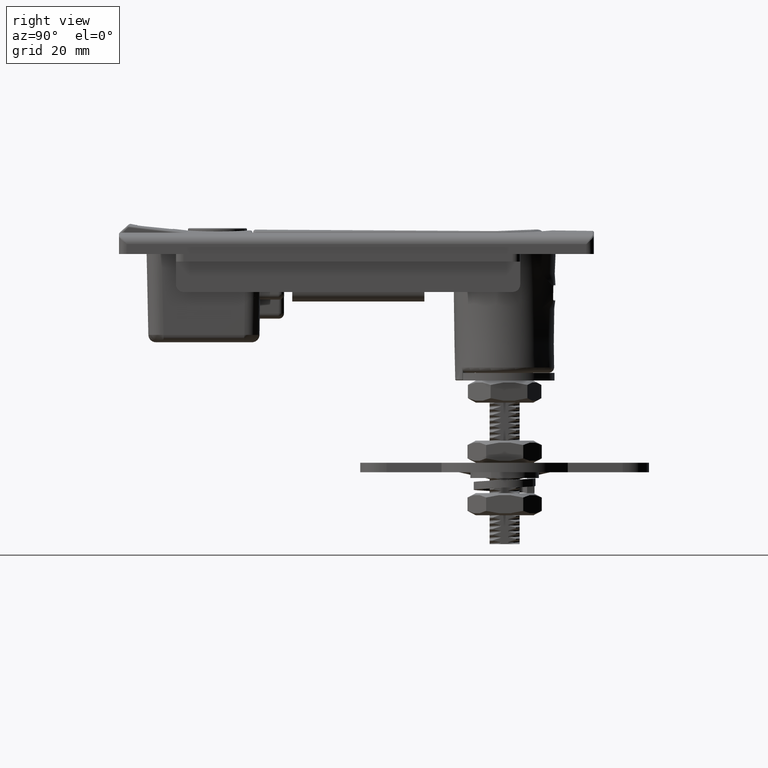
[diagram: clean part render]
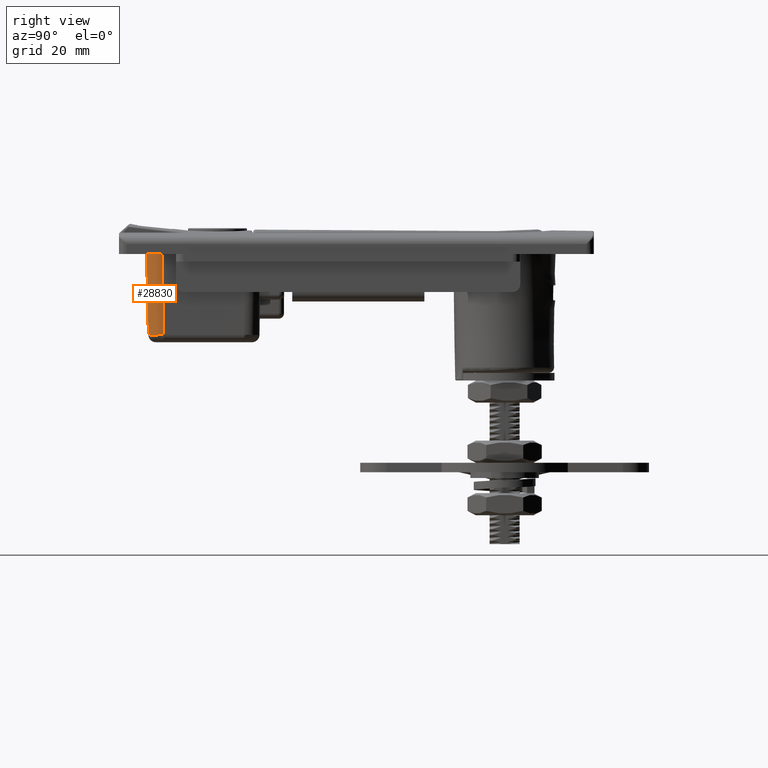
[diagram: same view with one face highlighted and labeled with its STEP entity id]
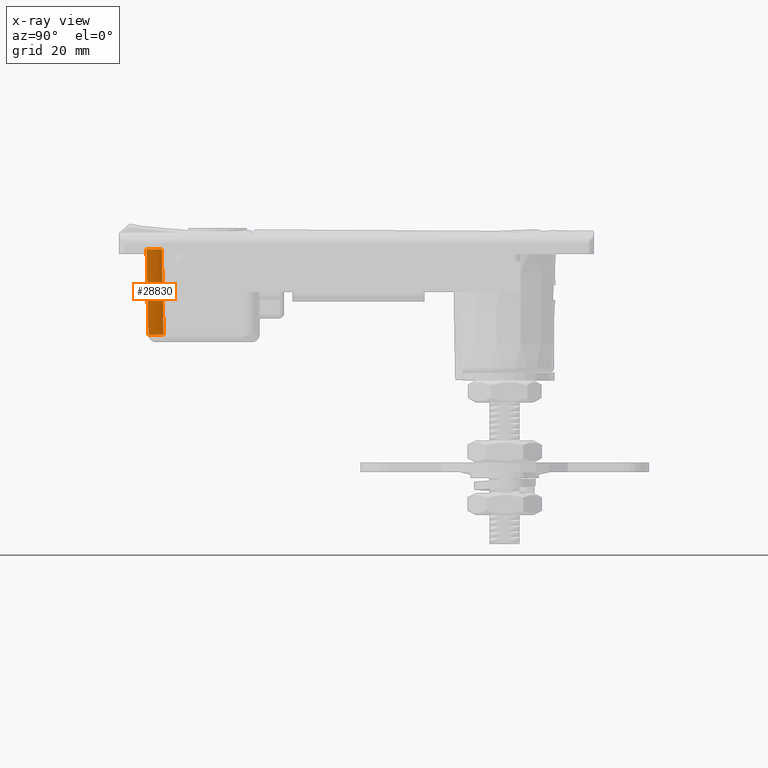
[diagram: x-ray of the same camera — body ghosted, the highlighted face saturated]
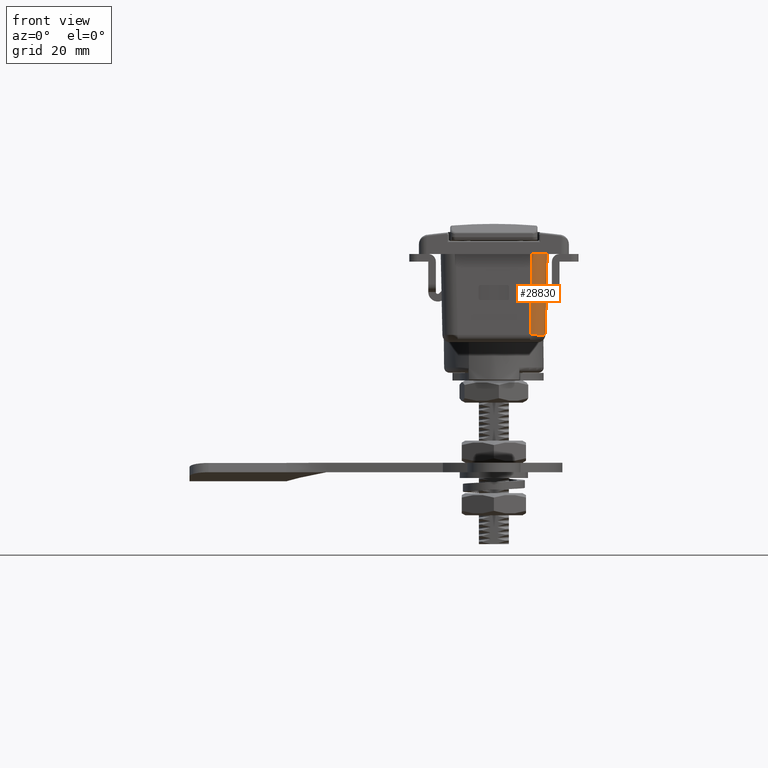
[diagram: same view with one face highlighted and labeled with its STEP entity id]
A machine part, right view. The second image highlights one B-rep face of the part: STEP entity #28830.
The next image is the same camera in x-ray: the body ghosted, the highlighted face saturated — about 0% of this face is hidden behind the body in this view.
A second angle (front view) of the same face is appended — the face is thin or edge-on in the first view.
In plain terms, the highlighted cylindrical surface (edge-blend (fillet) strip) has radius 4 mm, axis along (-0.0209, 0.0209, -0.9996).
Its self-contained STEP definition (entity closure, byte-faithful):
#465=CYLINDRICAL_SURFACE('',#30781,4.);
#1185=ELLIPSE('',#30782,4.00175472468459,4.);
#2526=LINE('',#42186,#4298);
#2574=LINE('',#43031,#4346);
#4298=VECTOR('',#33435,22.451729672091);
#4346=VECTOR('',#33695,22.451729672091);
#6503=FACE_OUTER_BOUND('',#8276,.T.);
#8276=EDGE_LOOP('',(#20215,#20216,#20217,#20218));
#9955=B_SPLINE_CURVE_WITH_KNOTS('',3,(#42716,#42717,#42718,#42719,#42720,
#42721,#42722,#42723,#42724,#42725,#42726,#42727,#42728,#42729,#42730,#42731,
#42732,#42733,#42734,#42735,#42736,#42737,#42738,#42739,#42740,#42741,#42742,
#42743,#42744,#42745,#42746,#42747,#42748,#42749,#42750,#42751,#42752,#42753,
#42754,#42755,#42756,#42757),.UNSPECIFIED.,.F.,.F.,(4,2,2,2,2,2,2,2,2,2,
2,2,2,2,2,2,2,2,2,2,4),(1.60657483519132E-15,0.072434479232657,0.0971134745901052,
0.156789152741119,0.200037921799459,0.256998059362436,0.304781860480683,
0.364326395926819,0.407943358541259,0.479360187518886,0.5,0.570296956150538,
0.601890511120556,0.660886361654141,0.706787453503396,0.76377845048373,
0.81040969859322,0.870575179356096,0.909016458677453,0.982268167394136,
1.),.UNSPECIFIED.);
#11951=VERTEX_POINT('',#42182);
#11952=VERTEX_POINT('',#42184);
#11994=VERTEX_POINT('',#42714);
#12006=VERTEX_POINT('',#43030);
#15037=EDGE_CURVE('',#11952,#11951,#2526,.T.);
#15114=EDGE_CURVE('',#11952,#11994,#9955,.T.);
#15148=EDGE_CURVE('',#12006,#11994,#2574,.T.);
#15149=EDGE_CURVE('',#11951,#12006,#1185,.T.);
#20215=ORIENTED_EDGE('',*,*,#15037,.F.);
#20216=ORIENTED_EDGE('',*,*,#15114,.T.);
#20217=ORIENTED_EDGE('',*,*,#15148,.F.);
#20218=ORIENTED_EDGE('',*,*,#15149,.F.);
#28830=ADVANCED_FACE('',(#6503),#465,.T.);
#30781=AXIS2_PLACEMENT_3D('',#43029,#33693,#33694);
#30782=AXIS2_PLACEMENT_3D('',#43032,#33696,#33697);
#33435=DIRECTION('',(0.0209378288783694,-0.0209378288783589,-0.99956151118564));
#33693=DIRECTION('center_axis',(-0.0209378288783694,0.0209378288783589,
0.99956151118564));
#33694=DIRECTION('ref_axis',(-0.999780683474845,4.8246996675605E-18,-0.02094241988336));
#33695=DIRECTION('',(-0.0209378288783694,0.0209378288783589,0.99956151118564));
#33696=DIRECTION('center_axis',(0.,0.,-1.));
#33697=DIRECTION('ref_axis',(-0.707106781186725,0.70710678118637,0.));
#42182=CARTESIAN_POINT('',(94.1,-10.0008772661006,-32.4));
#42184=CARTESIAN_POINT('',(93.6299095261024,-9.53078679220315,-9.95811516023325));
#42186=CARTESIAN_POINT('',(93.8297787486625,-9.73065601476313,-19.4997721917343));
#42714=CARTESIAN_POINT('',(89.630786792203,-13.5299095261025,-9.95811516023327));
#42716=CARTESIAN_POINT('Ctrl Pts',(93.6299095261024,-9.53078679220315,-9.95811516023326));
#42717=CARTESIAN_POINT('Ctrl Pts',(93.6298762746062,-9.68245085616616,-9.95652775038342));
#42718=CARTESIAN_POINT('Ctrl Pts',(93.6212125046686,-9.8339976599742,-9.95500895263238));
#42719=CARTESIAN_POINT('Ctrl Pts',(93.5981134540798,-10.0358852656416,-9.95308621505495));
#42720=CARTESIAN_POINT('Ctrl Pts',(93.5912495746504,-10.087078182222,-9.95260741766361));
#42721=CARTESIAN_POINT('Ctrl Pts',(93.564404862029,-10.261563199547,-9.95100647692791));
#42722=CARTESIAN_POINT('Ctrl Pts',(93.5396226225147,-10.3841474764196,-9.94993500593344));
#42723=CARTESIAN_POINT('Ctrl Pts',(93.4870623194158,-10.5931676960332,-9.94820816659285));
#42724=CARTESIAN_POINT('Ctrl Pts',(93.4619878321489,-10.6802656570687,-9.94751942192091));
#42725=CARTESIAN_POINT('Ctrl Pts',(93.3970906384943,-10.8799088685003,-9.94601610243015));
#42726=CARTESIAN_POINT('Ctrl Pts',(93.3551121491331,-10.9917612237811,-9.94523099622281));
#42727=CARTESIAN_POINT('Ctrl Pts',(93.2688779724641,-11.1935833249227,-9.94392638401017));
#42728=CARTESIAN_POINT('Ctrl Pts',(93.2260795529281,-11.2841755692703,-9.94338444339722));
#42729=CARTESIAN_POINT('Ctrl Pts',(93.1224696976432,-11.4837338896503,-9.94229325992929));
#42730=CARTESIAN_POINT('Ctrl Pts',(93.0598195919407,-11.5917280705977,-9.94177513302222));
#42731=CARTESIAN_POINT('Ctrl Pts',(92.9428136451014,-11.7733052074693,-9.94103559979029));
#42732=CARTESIAN_POINT('Ctrl Pts',(92.8907228047809,-11.8483662522937,-9.94077186526257));
#42733=CARTESIAN_POINT('Ctrl Pts',(92.7467615011584,-12.0413582567934,-9.94020818575732));
#42734=CARTESIAN_POINT('Ctrl Pts',(92.6506992775649,-12.1561172802553,-9.93999234497337));
#42735=CARTESIAN_POINT('Ctrl Pts',(92.5189334305993,-12.2967120729645,-9.93989037937263));
#42736=CARTESIAN_POINT('Ctrl Pts',(92.4888761976771,-12.3277597532002,-9.93987892887958));
#42737=CARTESIAN_POINT('Ctrl Pts',(92.3542399945607,-12.4623959563165,-9.93987892887959));
#42738=CARTESIAN_POINT('Ctrl Pts',(92.2444793999158,-12.5606616501235,-9.94001186736617));
#42739=CARTESIAN_POINT('Ctrl Pts',(92.0780175887977,-12.6939164462802,-9.94039423429301));
#42740=CARTESIAN_POINT('Ctrl Pts',(92.0253753489459,-12.7339572672821,-9.94053920894455));
#42741=CARTESIAN_POINT('Ctrl Pts',(91.8716495669171,-12.8449763715152,-9.94102980570554));
#42742=CARTESIAN_POINT('Ctrl Pts',(91.7681542489617,-12.9126603114631,-9.94144048460517));
#42743=CARTESIAN_POINT('Ctrl Pts',(91.5789129118369,-13.0242582652627,-9.94232734558712));
#42744=CARTESIAN_POINT('Ctrl Pts',(91.4943267865266,-13.0701145053366,-9.94276872491576));
#42745=CARTESIAN_POINT('Ctrl Pts',(91.3012301588083,-13.1659542016277,-9.9438729491945));
#42746=CARTESIAN_POINT('Ctrl Pts',(91.1918817133398,-13.2142535791762,-9.94456353443026));
#42747=CARTESIAN_POINT('Ctrl Pts',(90.9895478195829,-13.2929989611961,-9.94595303220737));
#42748=CARTESIAN_POINT('Ctrl Pts',(90.8972017135871,-13.3250951735568,-9.94662758324516));
#42749=CARTESIAN_POINT('Ctrl Pts',(90.6833447687458,-13.3907517172526,-9.948276970433));
#42750=CARTESIAN_POINT('Ctrl Pts',(90.5611535154595,-13.4220304990318,-9.94928209085981));
#42751=CARTESIAN_POINT('Ctrl Pts',(90.358978462085,-13.4637254541053,-9.95103972960652));
#42752=CARTESIAN_POINT('Ctrl Pts',(90.2796855260264,-13.4775976413043,-9.95175238714891));
#42753=CARTESIAN_POINT('Ctrl Pts',(90.0483311608511,-13.5109163293556,-9.95389550700568));
#42754=CARTESIAN_POINT('Ctrl Pts',(89.8953994649391,-13.5240329764576,-9.95539156337251));
#42755=CARTESIAN_POINT('Ctrl Pts',(89.7050338573396,-13.5293762961522,-9.95734207865247));
#42756=CARTESIAN_POINT('Ctrl Pts',(89.6679138872413,-13.529901386195,-9.95772656510521));
#42757=CARTESIAN_POINT('Ctrl Pts',(89.630786792203,-13.5299095261025,-9.95811516023327));
#43029=CARTESIAN_POINT('Origin',(90.1240459345533,-10.0240459345532,-33.5898303597132));
#43030=CARTESIAN_POINT('',(90.1008772661007,-13.9999999999999,-32.4));
#43031=CARTESIAN_POINT('',(90.1240459345533,-14.0231686684526,-33.5060606801798));
#43032=CARTESIAN_POINT('Origin',(90.0991225414583,-9.99912254145817,-32.4));